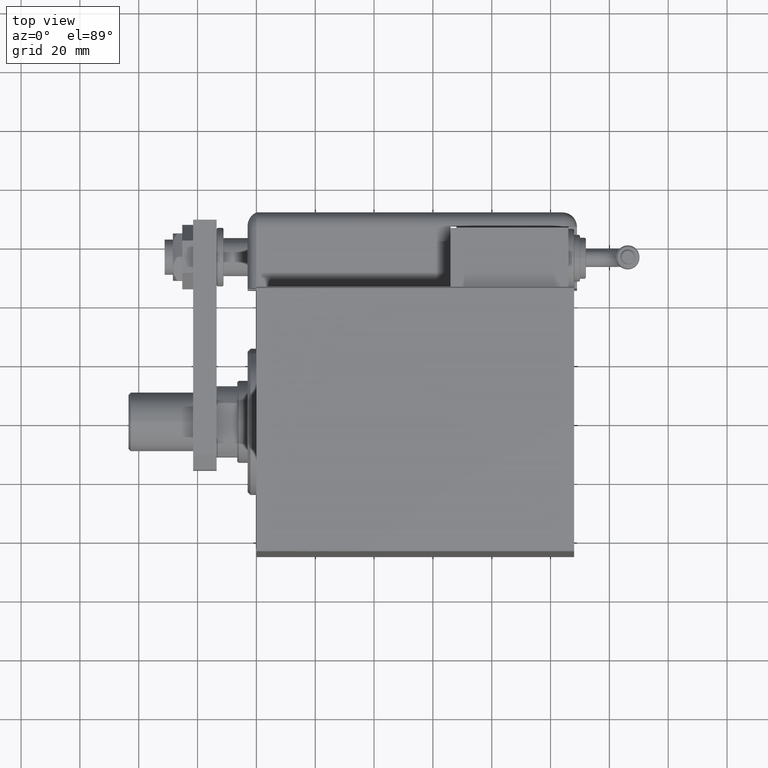
[diagram: clean part render]
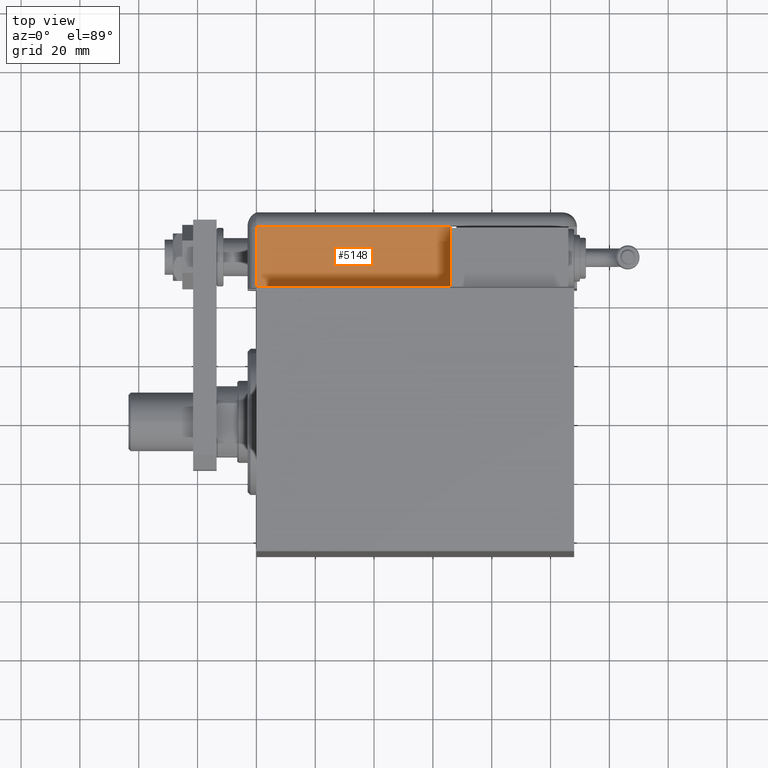
[diagram: same view with one face highlighted and labeled with its STEP entity id]
A machine part, top view. The second image highlights one B-rep face of the part: STEP entity #5148.
In plain terms, the highlighted planar face has unit normal (-0, -0, -1).
Its self-contained STEP definition (entity closure, byte-faithful):
#1117 = DIRECTION ( 'NONE',  ( -0.000000000000000000, 1.000000000000000000, -0.000000000000000000 ) ) ;
#5148 = ADVANCED_FACE ( 'NONE', ( #58614 ), #53904, .F. ) ;
#6590 = VECTOR ( 'NONE', #23808, 1000.000000000000000 ) ;
#7315 = EDGE_LOOP ( 'NONE', ( #16292, #13116, #48933, #50958 ) ) ;
#7629 = EDGE_CURVE ( 'NONE', #40388, #17036, #48486, .T. ) ;
#8042 = CARTESIAN_POINT ( 'NONE',  ( 28.99999999999999645, -9.421223957302265857E-15, 109.0000000000000000 ) ) ;
#10137 = EDGE_CURVE ( 'NONE', #48977, #14309, #22108, .T. ) ;
#13116 = ORIENTED_EDGE ( 'NONE', *, *, #23392, .F. ) ;
#13670 = VECTOR ( 'NONE', #41509, 1000.000000000000000 ) ;
#14309 = VERTEX_POINT ( 'NONE', #49015 ) ;
#15241 = CARTESIAN_POINT ( 'NONE',  ( 28.99999999999999645, 20.79999999999998295, 109.0000000000000000 ) ) ;
#16292 = ORIENTED_EDGE ( 'NONE', *, *, #10137, .T. ) ;
#16885 = DIRECTION ( 'NONE',  ( -0.000000000000000000, -1.000000000000000000, -0.000000000000000000 ) ) ;
#17036 = VERTEX_POINT ( 'NONE', #15241 ) ;
#21858 = EDGE_CURVE ( 'NONE', #48977, #17036, #33345, .T. ) ;
#22108 = LINE ( 'NONE', #8042, #13670 ) ;
#23392 = EDGE_CURVE ( 'NONE', #40388, #14309, #35677, .T. ) ;
#23808 = DIRECTION ( 'NONE',  ( -0.000000000000000000, -0.000000000000000000, 1.000000000000000000 ) ) ;
#24564 = CARTESIAN_POINT ( 'NONE',  ( 28.99999999999999645, 25.79999999999998295, 109.0000000000000000 ) ) ;
#27474 = AXIS2_PLACEMENT_3D ( 'NONE', #30147, #59848, #35163 ) ;
#29089 = VECTOR ( 'NONE', #1117, 1000.000000000000000 ) ;
#29424 = CARTESIAN_POINT ( 'NONE',  ( 28.99999999999999645, 20.79999999999998295, 43.00000000000000000 ) ) ;
#30147 = CARTESIAN_POINT ( 'NONE',  ( 28.99999999999999645, 25.79999999999998295, 109.0000000000000000 ) ) ;
#33345 = LINE ( 'NONE', #24564, #29089 ) ;
#35163 = DIRECTION ( 'NONE',  ( 0.000000000000000000, 0.000000000000000000, 1.000000000000000000 ) ) ;
#35677 = LINE ( 'NONE', #40377, #58364 ) ;
#40377 = CARTESIAN_POINT ( 'NONE',  ( 28.99999999999999645, 0.000000000000000000, 43.00000000000000000 ) ) ;
#40388 = VERTEX_POINT ( 'NONE', #29424 ) ;
#41509 = DIRECTION ( 'NONE',  ( -0.000000000000000000, -0.000000000000000000, -1.000000000000000000 ) ) ;
#48486 = LINE ( 'NONE', #57883, #6590 ) ;
#48933 = ORIENTED_EDGE ( 'NONE', *, *, #7629, .T. ) ;
#48977 = VERTEX_POINT ( 'NONE', #50705 ) ;
#49015 = CARTESIAN_POINT ( 'NONE',  ( 28.99999999999999645, 0.000000000000000000, 43.00000000000000000 ) ) ;
#50705 = CARTESIAN_POINT ( 'NONE',  ( 28.99999999999999645, -9.421223957302265857E-15, 109.0000000000000000 ) ) ;
#50958 = ORIENTED_EDGE ( 'NONE', *, *, #21858, .F. ) ;
#53904 = PLANE ( 'NONE',  #27474 ) ;
#57883 = CARTESIAN_POINT ( 'NONE',  ( 28.99999999999999645, 20.79999999999998295, 109.0000000000000000 ) ) ;
#58364 = VECTOR ( 'NONE', #16885, 1000.000000000000000 ) ;
#58614 = FACE_OUTER_BOUND ( 'NONE', #7315, .T. ) ;
#59848 = DIRECTION ( 'NONE',  ( -1.000000000000000000, 0.000000000000000000, 0.000000000000000000 ) ) ;